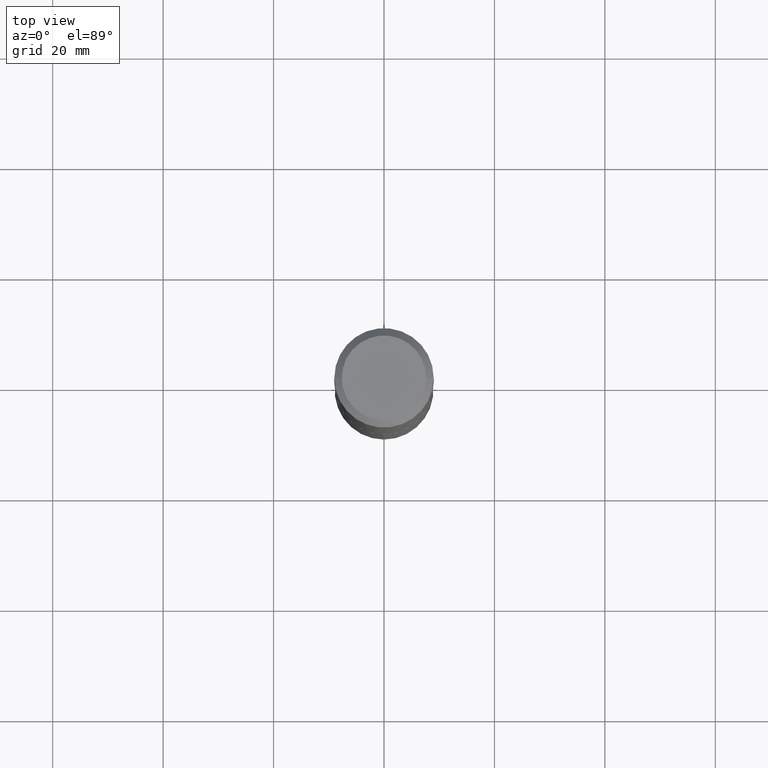
[diagram: clean part render]
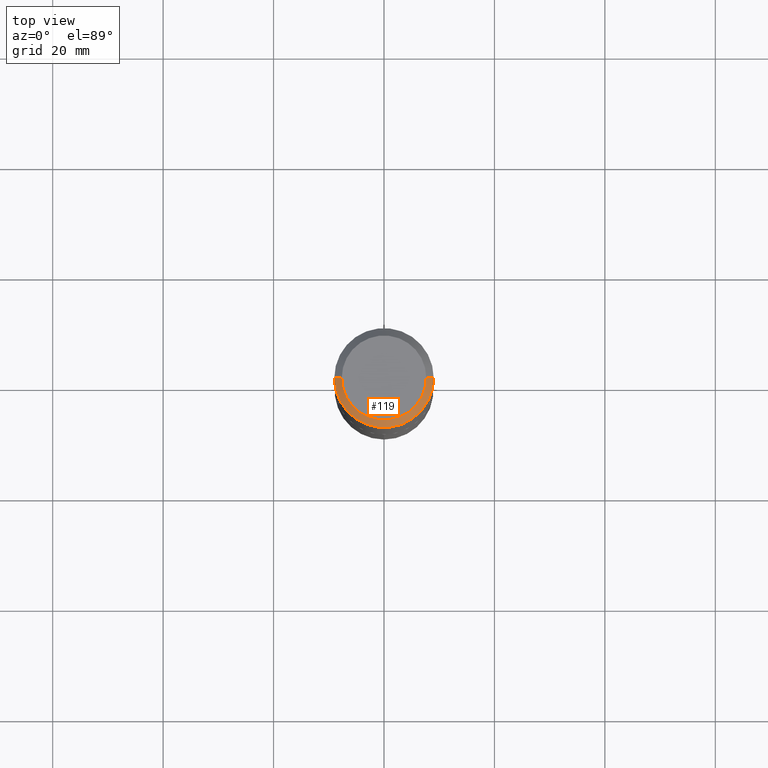
[diagram: same view with one face highlighted and labeled with its STEP entity id]
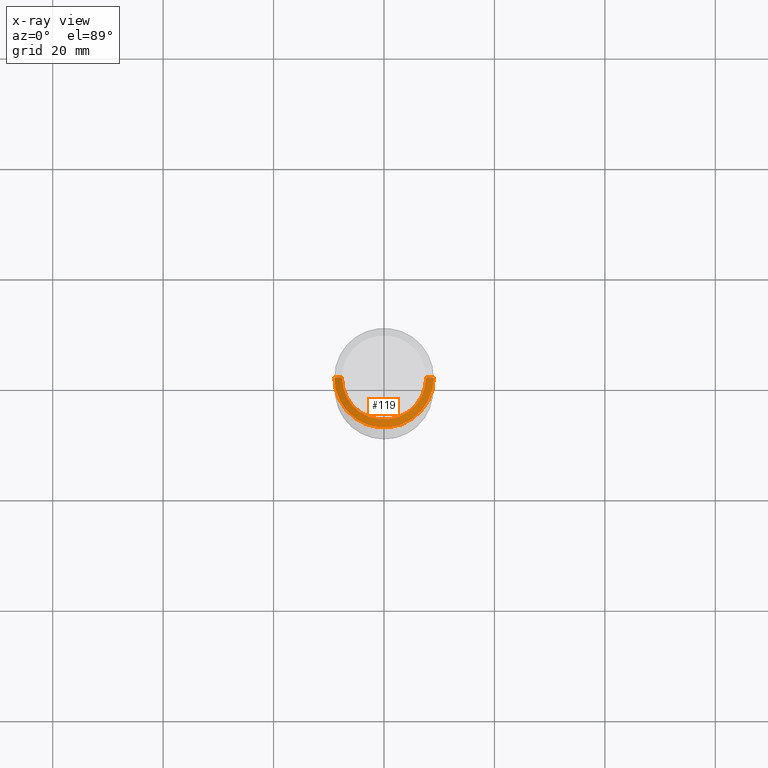
[diagram: x-ray of the same camera — body ghosted, the highlighted face saturated]
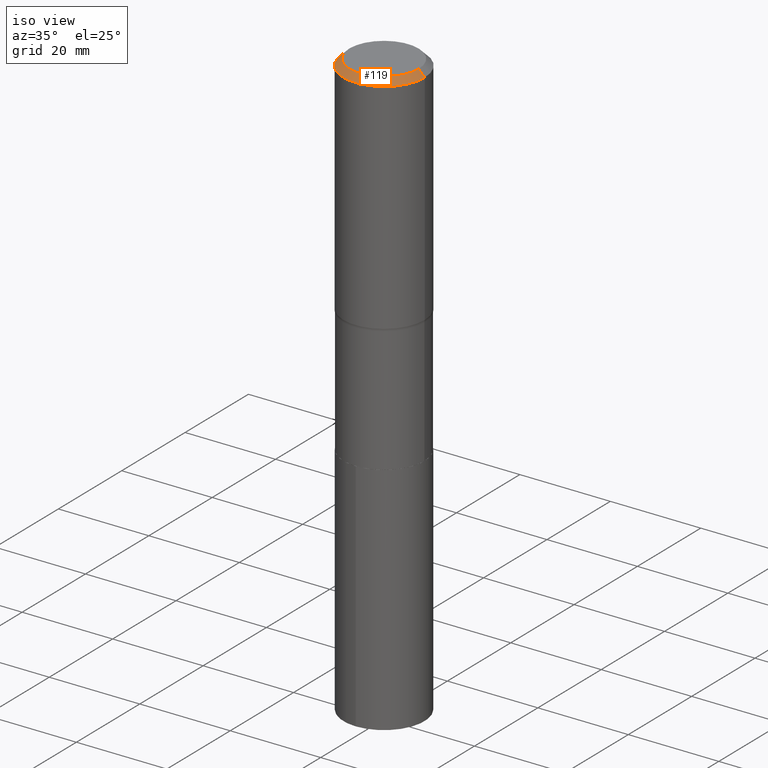
[diagram: same view with one face highlighted and labeled with its STEP entity id]
A machine part, top view. The second image highlights one B-rep face of the part: STEP entity #119.
The next image is the same camera in x-ray: the body ghosted, the highlighted face saturated — about 0% of this face is hidden behind the body in this view.
A second angle (iso view) of the same face is appended — the face is thin or edge-on in the first view.
In plain terms, the highlighted conical surface has half-angle 45 deg.
Its self-contained STEP definition (entity closure, byte-faithful):
#3 = EDGE_CURVE ( 'NONE', #352, #155, #342, .T. ) ;
#5 = CARTESIAN_POINT ( 'NONE',  ( -1.002970424325033577E-46, 1.431975951230896212E-32, 4.101342130344485961E-18 ) ) ;
#8 = AXIS2_PLACEMENT_3D ( 'NONE', #60, #449, #52 ) ;
#49 = ORIENTED_EDGE ( 'NONE', *, *, #3, .F. ) ;
#52 = DIRECTION ( 'NONE',  ( -1.000000000000000000, 6.982962677686266711E-15, 0.000000000000000000 ) ) ;
#60 = CARTESIAN_POINT ( 'NONE',  ( 1.299827807207564898E-30, -1.855809618628617475E-16, -0.05315250000000042163 ) ) ;
#62 = LINE ( 'NONE', #93, #425 ) ;
#71 = ORIENTED_EDGE ( 'NONE', *, *, #420, .F. ) ;
#78 = EDGE_CURVE ( 'NONE', #352, #298, #154, .T. ) ;
#87 = DIRECTION ( 'NONE',  ( -0.7071067811865452413, 2.468850131082233000E-15, -0.7071067811865497932 ) ) ;
#93 = CARTESIAN_POINT ( 'NONE',  ( 0.3543500000000000538, -2.616598427373204657E-15, -0.05315250000000042163 ) ) ;
#101 = DIRECTION ( 'NONE',  ( 1.000000000000000000, -6.982962677686266711E-15, 0.000000000000000000 ) ) ;
#119 = ADVANCED_FACE ( 'NONE', ( #337 ), #328, .T. ) ;
#151 = DIRECTION ( 'NONE',  ( -2.445468806185136597E-29, 3.491481338843145583E-15, 1.000000000000000000 ) ) ;
#154 = LINE ( 'NONE', #267, #187 ) ;
#155 = VERTEX_POINT ( 'NONE', #339 ) ;
#180 = AXIS2_PLACEMENT_3D ( 'NONE', #5, #151, #357 ) ;
#187 = VECTOR ( 'NONE', #87, 39.37007874015748143 ) ;
#190 = ORIENTED_EDGE ( 'NONE', *, *, #78, .T. ) ;
#220 = EDGE_LOOP ( 'NONE', ( #71, #49, #190, #417 ) ) ;
#243 = CIRCLE ( 'NONE', #370, 0.3543500000000000538 ) ;
#244 = DIRECTION ( 'NONE',  ( -2.445468806185136597E-29, 3.491481338843145583E-15, 1.000000000000000000 ) ) ;
#263 = EDGE_CURVE ( 'NONE', #298, #311, #243, .T. ) ;
#267 = CARTESIAN_POINT ( 'NONE',  ( -0.3543500000000000538, 2.288831862975267218E-15, -0.05315250000000042163 ) ) ;
#272 = CARTESIAN_POINT ( 'NONE',  ( 0.3543500000000000538, -2.659993786700990959E-15, -0.05315250000000042163 ) ) ;
#298 = VERTEX_POINT ( 'NONE', #388 ) ;
#311 = VERTEX_POINT ( 'NONE', #272 ) ;
#328 = CONICAL_SURFACE ( 'NONE', #8, 0.3543500000000000538, 0.7853981633974450594 ) ;
#337 = FACE_OUTER_BOUND ( 'NONE', #220, .T. ) ;
#339 = CARTESIAN_POINT ( 'NONE',  ( 0.3011975000000000069, -2.341481636528498111E-15, 4.101342130360026675E-18 ) ) ;
#342 = CIRCLE ( 'NONE', #180, 0.3011975000000000069 ) ;
#352 = VERTEX_POINT ( 'NONE', #407 ) ;
#357 = DIRECTION ( 'NONE',  ( 1.000000000000000000, -6.982962677686266711E-15, 4.876239486148337140E-29 ) ) ;
#370 = AXIS2_PLACEMENT_3D ( 'NONE', #422, #244, #101 ) ;
#388 = CARTESIAN_POINT ( 'NONE',  ( -0.3543500000000000538, -9.977163846887918380E-16, -0.05315250000000042163 ) ) ;
#407 = CARTESIAN_POINT ( 'NONE',  ( -0.3011975000000000069, 2.196041382043838255E-15, 4.101342130329452923E-18 ) ) ;
#417 = ORIENTED_EDGE ( 'NONE', *, *, #263, .T. ) ;
#420 = EDGE_CURVE ( 'NONE', #155, #311, #62, .T. ) ;
#422 = CARTESIAN_POINT ( 'NONE',  ( 1.299827807207564898E-30, -1.855809618628617475E-16, -0.05315250000000042163 ) ) ;
#425 = VECTOR ( 'NONE', #457, 39.37007874015748143 ) ;
#449 = DIRECTION ( 'NONE',  ( 2.445468806185136597E-29, -3.491481338843145583E-15, -1.000000000000000000 ) ) ;
#457 = DIRECTION ( 'NONE',  ( 0.7071067811865452413, -7.319954787623248157E-15, -0.7071067811865497932 ) ) ;